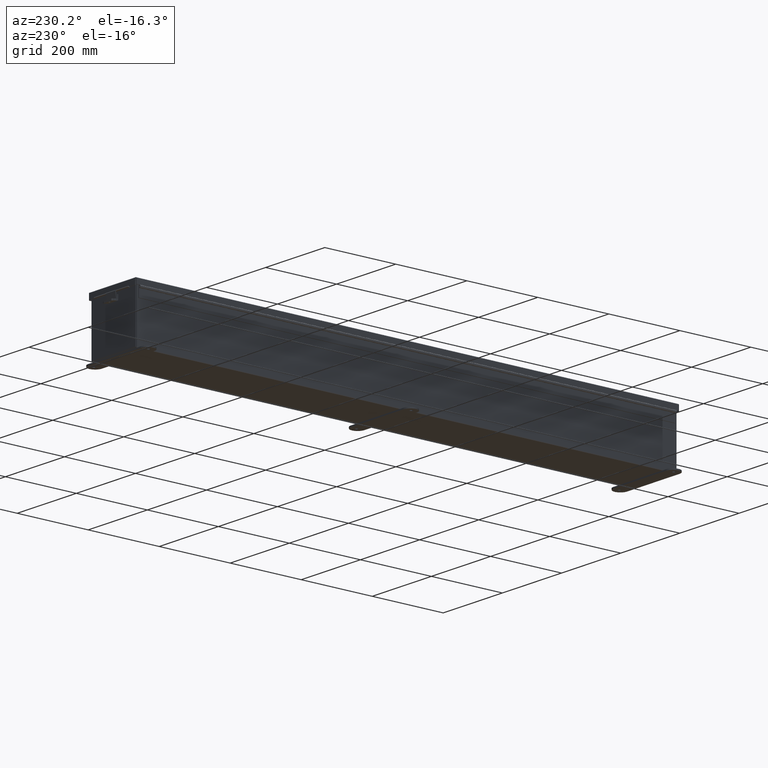
[diagram: clean part render]
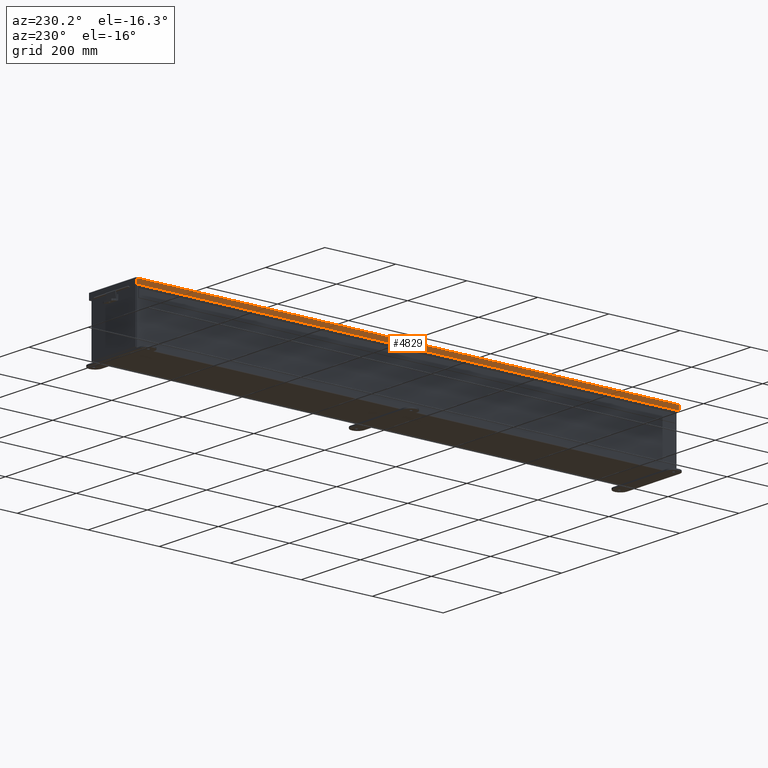
[diagram: same view with one face highlighted and labeled with its STEP entity id]
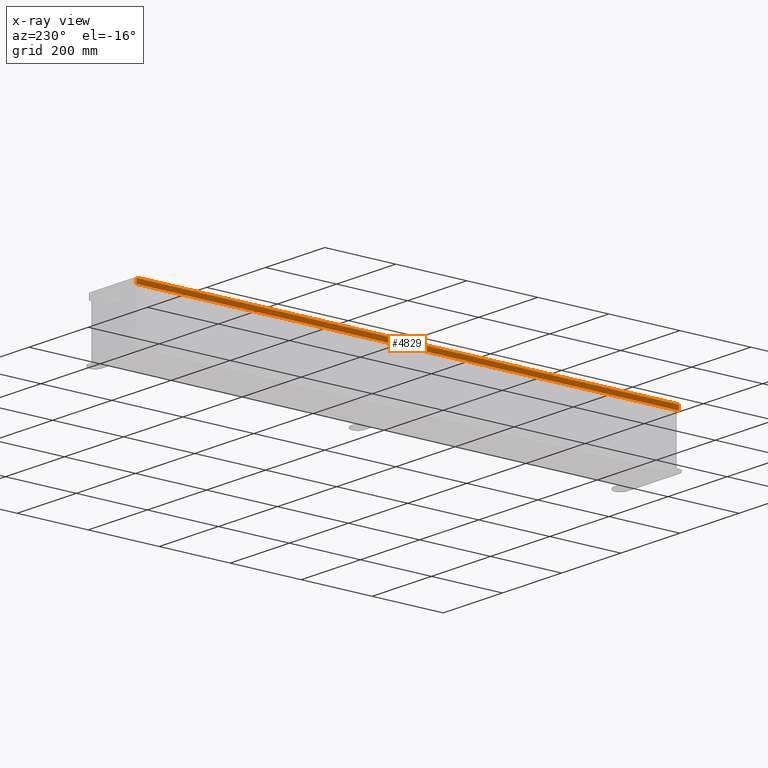
[diagram: x-ray of the same camera — body ghosted, the highlighted face saturated]
A machine part, auxiliary view. The second image highlights one B-rep face of the part: STEP entity #4829.
The next image is the same camera in x-ray: the body ghosted, the highlighted face saturated — about 0% of this face is hidden behind the body in this view.
In plain terms, the highlighted planar face has unit normal (1, -0, -0).
Its self-contained STEP definition (entity closure, byte-faithful):
#489 = EDGE_CURVE ( 'NONE', #31255, #12720, #23936, .T. ) ;
#2291 = VECTOR ( 'NONE', #5071, 39.37007874015748100 ) ;
#2476 = CARTESIAN_POINT ( 'NONE',  ( 3.156249999999997800, 30.07447893218812900, -1.202013117212275700E-014 ) ) ;
#2527 = DIRECTION ( 'NONE',  ( -1.420941701446986300E-028, -1.000000000000000000, -2.717693340855870500E-017 ) ) ;
#4521 = DIRECTION ( 'NONE',  ( 3.971430846686188400E-015, 8.519697776386927500E-029, 1.000000000000000000 ) ) ;
#4829 = ADVANCED_FACE ( 'NONE', ( #40167 ), #31312, .F. ) ;
#5071 = DIRECTION ( 'NONE',  ( -1.419850353612258400E-028, -1.000000000000000000, -8.519697776386927500E-029 ) ) ;
#5131 = ORIENTED_EDGE ( 'NONE', *, *, #26585, .F. ) ;
#10884 = CARTESIAN_POINT ( 'NONE',  ( 3.156250000000000000, -30.07447893218813600, 0.5502999999999999000 ) ) ;
#12720 = VERTEX_POINT ( 'NONE', #21793 ) ;
#14319 = VERTEX_POINT ( 'NONE', #10884 ) ;
#14964 = VECTOR ( 'NONE', #26023, 39.37007874015748100 ) ;
#16284 = CARTESIAN_POINT ( 'NONE',  ( 3.156249999999997800, -30.07447893218813600, -1.092739197465705300E-015 ) ) ;
#17108 = ORIENTED_EDGE ( 'NONE', *, *, #489, .T. ) ;
#17914 = CARTESIAN_POINT ( 'NONE',  ( 3.156249999999997800, -1.067128122525102800E-018, -1.311287036958846300E-014 ) ) ;
#19683 = DIRECTION ( 'NONE',  ( 3.971430846686188400E-015, 8.519697776386927500E-029, 1.000000000000000000 ) ) ;
#21275 = CARTESIAN_POINT ( 'NONE',  ( 3.156249999999997800, -30.07447893218812900, 0.01300000000000010700 ) ) ;
#21570 = VECTOR ( 'NONE', #19683, 39.37007874015748100 ) ;
#21793 = CARTESIAN_POINT ( 'NONE',  ( 3.156250000000000000, 30.07447893218812900, 0.5503000000000010100 ) ) ;
#22545 = EDGE_CURVE ( 'NONE', #37652, #14319, #38357, .T. ) ;
#23936 = LINE ( 'NONE', #2476, #14964 ) ;
#24699 = DIRECTION ( 'NONE',  ( -1.000000000000000000, -1.419839339908043000E-028, 3.971430846686188400E-015 ) ) ;
#25225 = CARTESIAN_POINT ( 'NONE',  ( 3.156250000000000000, -1.067128122525102800E-018, 0.5502999999999999000 ) ) ;
#26023 = DIRECTION ( 'NONE',  ( 3.971430846686188400E-015, 8.519697776386927500E-029, 1.000000000000000000 ) ) ;
#26585 = EDGE_CURVE ( 'NONE', #31255, #37652, #42834, .T. ) ;
#29973 = AXIS2_PLACEMENT_3D ( 'NONE', #17914, #24699, #4521 ) ;
#30686 = EDGE_LOOP ( 'NONE', ( #5131, #17108, #41891, #42712 ) ) ;
#31255 = VERTEX_POINT ( 'NONE', #34862 ) ;
#31312 = PLANE ( 'NONE',  #29973 ) ;
#34862 = CARTESIAN_POINT ( 'NONE',  ( 3.156249999999997800, 30.07447893218812900, 0.01300000000000229300 ) ) ;
#34955 = VECTOR ( 'NONE', #2527, 39.37007874015748100 ) ;
#37034 = LINE ( 'NONE', #25225, #2291 ) ;
#37652 = VERTEX_POINT ( 'NONE', #21275 ) ;
#38357 = LINE ( 'NONE', #16284, #21570 ) ;
#39662 = EDGE_CURVE ( 'NONE', #12720, #14319, #37034, .T. ) ;
#40167 = FACE_OUTER_BOUND ( 'NONE', #30686, .T. ) ;
#41891 = ORIENTED_EDGE ( 'NONE', *, *, #39662, .T. ) ;
#42712 = ORIENTED_EDGE ( 'NONE', *, *, #22545, .F. ) ;
#42827 = CARTESIAN_POINT ( 'NONE',  ( 3.156249999999997800, -30.15625000000000000, 0.01299999999999901400 ) ) ;
#42834 = LINE ( 'NONE', #42827, #34955 ) ;